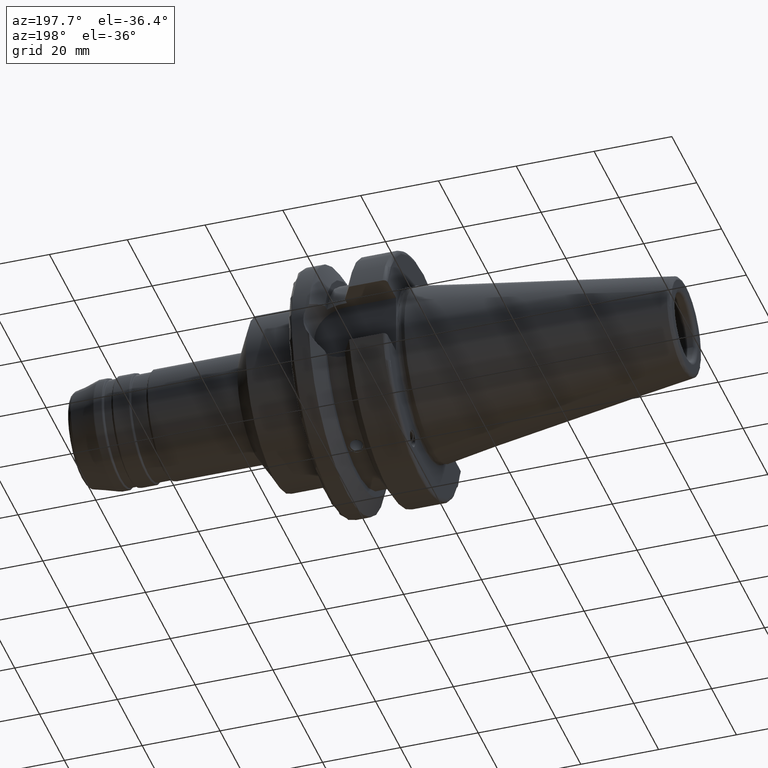
[diagram: clean part render]
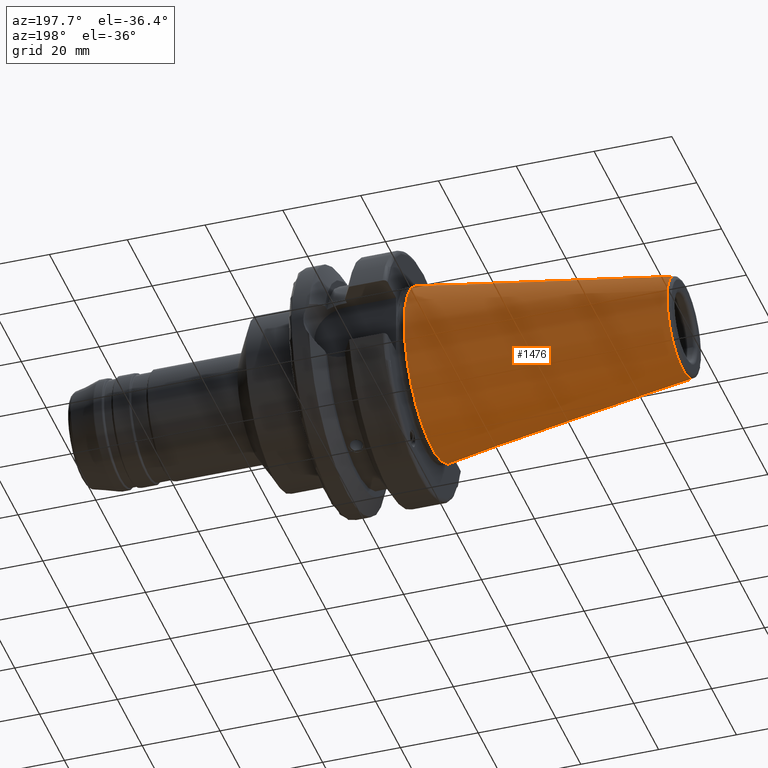
[diagram: same view with one face highlighted and labeled with its STEP entity id]
A machine part, auxiliary view. The second image highlights one B-rep face of the part: STEP entity #1476.
In plain terms, the highlighted conical surface has half-angle 8.297 deg.
Its self-contained STEP definition (entity closure, byte-faithful):
#228=FACE_OUTER_BOUND('',#330,.T.);
#330=EDGE_LOOP('',(#1317,#1318,#1319,#1320,#1321));
#416=LINE('',#2864,#489);
#489=VECTOR('',#2155,17.5186442890469);
#574=CIRCLE('',#1689,12.8122885780937);
#575=CIRCLE('',#1690,12.8122885780937);
#577=CIRCLE('',#1693,22.225);
#719=VERTEX_POINT('',#2856);
#720=VERTEX_POINT('',#2857);
#721=VERTEX_POINT('',#2862);
#925=EDGE_CURVE('',#719,#720,#574,.T.);
#926=EDGE_CURVE('',#720,#719,#575,.T.);
#928=EDGE_CURVE('',#721,#721,#577,.T.);
#929=EDGE_CURVE('',#721,#719,#416,.T.);
#1317=ORIENTED_EDGE('',*,*,#928,.F.);
#1318=ORIENTED_EDGE('',*,*,#929,.T.);
#1319=ORIENTED_EDGE('',*,*,#925,.T.);
#1320=ORIENTED_EDGE('',*,*,#926,.T.);
#1321=ORIENTED_EDGE('',*,*,#929,.F.);
#1395=CONICAL_SURFACE('',#1692,17.5186442890469,0.144812498238939);
#1476=ADVANCED_FACE('',(#228),#1395,.T.);
#1689=AXIS2_PLACEMENT_3D('',#2858,#2145,#2146);
#1690=AXIS2_PLACEMENT_3D('',#2859,#2147,#2148);
#1692=AXIS2_PLACEMENT_3D('',#2861,#2151,#2152);
#1693=AXIS2_PLACEMENT_3D('',#2863,#2153,#2154);
#2145=DIRECTION('center_axis',(1.,0.,0.));
#2146=DIRECTION('ref_axis',(0.,0.,-1.));
#2147=DIRECTION('center_axis',(1.,0.,0.));
#2148=DIRECTION('ref_axis',(0.,0.,-1.));
#2151=DIRECTION('center_axis',(1.,0.,0.));
#2152=DIRECTION('ref_axis',(0.,1.,0.));
#2153=DIRECTION('center_axis',(1.,0.,0.));
#2154=DIRECTION('ref_axis',(0.,0.,-1.));
#2155=DIRECTION('',(-0.989532981063281,0.144306893071729,1.76724974695192E-17));
#2856=CARTESIAN_POINT('',(-64.5443068930717,-12.8122885780937,-1.56905281969147E-15));
#2857=CARTESIAN_POINT('',(-64.5443068930717,-1.56905281969147E-15,12.8122885780937));
#2858=CARTESIAN_POINT('Origin',(-64.5443068930717,0.,0.));
#2859=CARTESIAN_POINT('Origin',(-64.5443068930717,0.,0.));
#2861=CARTESIAN_POINT('Origin',(-32.2721534465359,0.,0.));
#2862=CARTESIAN_POINT('',(4.44089209850063E-15,-22.225,-2.72177751110499E-15));
#2863=CARTESIAN_POINT('Origin',(0.,0.,0.));
#2864=CARTESIAN_POINT('',(-32.2721534465359,-17.5186442890469,-2.14541516539823E-15));